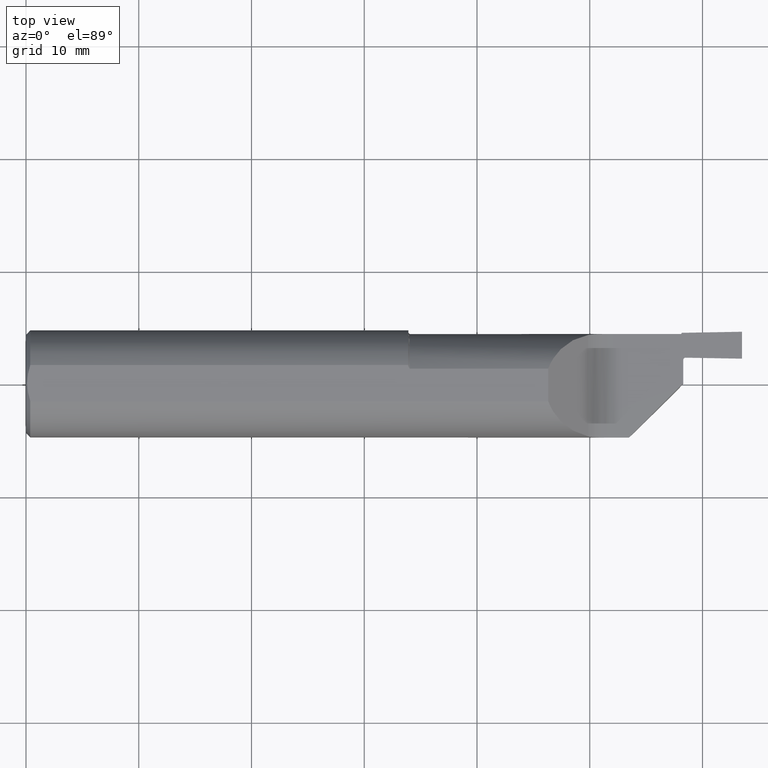
[diagram: clean part render]
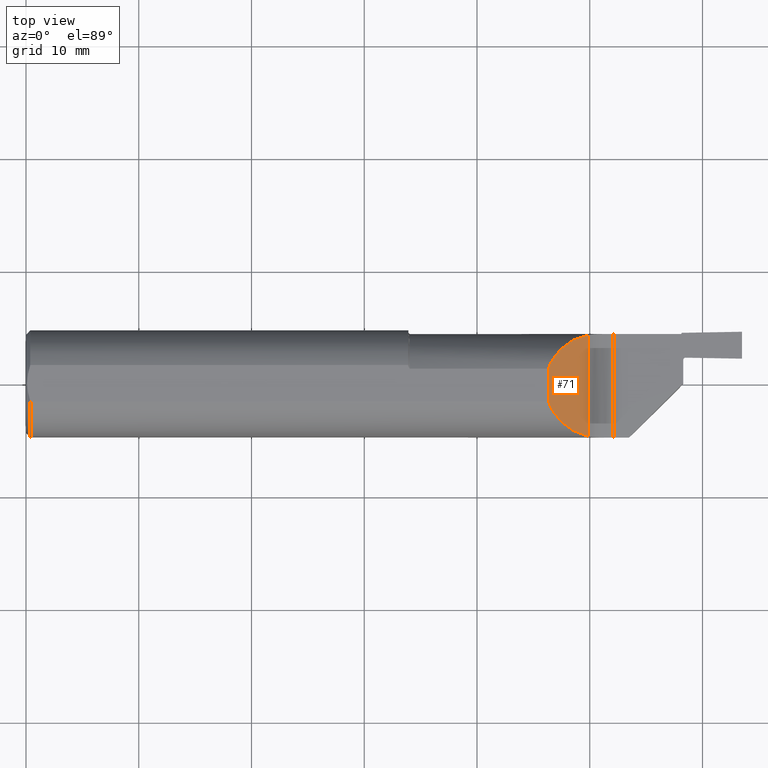
[diagram: same view with one face highlighted and labeled with its STEP entity id]
A machine part, top view. The second image highlights one B-rep face of the part: STEP entity #71.
In plain terms, the highlighted planar face has unit normal (0.7071, -0, 0.7071).
Its self-contained STEP definition (entity closure, byte-faithful):
#3 = DIRECTION ( 'NONE',  ( 0.7071067811865492381, 0.000000000000000000, -0.7071067811865459074 ) ) ;
#21 = CARTESIAN_POINT ( 'NONE',  ( 2.000000000000000000, 0.2873499999999999943, 6.488138984952624897E-16 ) ) ;
#47 = CARTESIAN_POINT ( 'NONE',  ( 1.897454588124415586, 0.1576130183548816455, 0.1025454118755840249 ) ) ;
#71 = ADVANCED_FACE ( 'NONE', ( #603 ), #87, .T. ) ;
#77 = CARTESIAN_POINT ( 'NONE',  ( 1.846378452100291501, -0.1266201564974553662, 0.1536215478997087214 ) ) ;
#87 = PLANE ( 'NONE',  #107 ) ;
#88 = VERTEX_POINT ( 'NONE', #536 ) ;
#102 = CARTESIAN_POINT ( 'NONE',  ( 1.846487386027261035, 0.1137732605392144658, 0.1535126139727385763 ) ) ;
#107 = AXIS2_PLACEMENT_3D ( 'NONE', #21, #277, #3 ) ;
#133 = DIRECTION ( 'NONE',  ( 0.000000000000000000, 1.000000000000000000, 0.000000000000000000 ) ) ;
#154 = ORIENTED_EDGE ( 'NONE', *, *, #327, .F. ) ;
#199 = VERTEX_POINT ( 'NONE', #857 ) ;
#202 = CARTESIAN_POINT ( 'NONE',  ( 1.963388347648318932, -0.1837378823544007778, 0.03661165235168151871 ) ) ;
#203 = ORIENTED_EDGE ( 'NONE', *, *, #256, .F. ) ;
#217 = CARTESIAN_POINT ( 'NONE',  ( 1.823649999999999771, 0.05054325299224043250, 0.1763499999999999790 ) ) ;
#256 = EDGE_CURVE ( 'NONE', #88, #687, #586, .T. ) ;
#259 = CARTESIAN_POINT ( 'NONE',  ( 1.823649999999999771, -0.06325108694718213631, 0.1763499999999999790 ) ) ;
#277 = DIRECTION ( 'NONE',  ( 0.7071067811865459074, -0.000000000000000000, 0.7071067811865492381 ) ) ;
#289 = ORIENTED_EDGE ( 'NONE', *, *, #334, .T. ) ;
#303 = ORIENTED_EDGE ( 'NONE', *, *, #862, .T. ) ;
#310 =( BOUNDED_CURVE ( )  B_SPLINE_CURVE ( 3, ( #445, #47, #102, #842 ),
 .UNSPECIFIED., .F., .F. ) 
 B_SPLINE_CURVE_WITH_KNOTS ( ( 4, 4 ),
 ( 4.908913714375442439, 5.936585895212762587 ),
 .UNSPECIFIED. ) 
 CURVE ( )  GEOMETRIC_REPRESENTATION_ITEM ( )  RATIONAL_B_SPLINE_CURVE ( ( 1.000000000000000000, 0.9139102658081098562, 0.9139102658081098562, 1.000000000000000000 ) ) 
 REPRESENTATION_ITEM ( '' )  );
#327 = EDGE_CURVE ( 'NONE', #594, #88, #757, .T. ) ;
#334 = EDGE_CURVE ( 'NONE', #594, #199, #535, .T. ) ;
#445 = CARTESIAN_POINT ( 'NONE',  ( 1.963388347648318710, 0.1707400671470789832, 0.03661165235168143545 ) ) ;
#466 = CARTESIAN_POINT ( 'NONE',  ( 1.823649999999999771, 0.06325108694718213631, 0.1763499999999999790 ) ) ;
#525 = DIRECTION ( 'NONE',  ( -0.000000000000000000, 1.000000000000000000, 0.000000000000000000 ) ) ;
#535 = LINE ( 'NONE', #799, #820 ) ;
#536 = CARTESIAN_POINT ( 'NONE',  ( 1.823649999999999771, -0.06325108694718213631, 0.1763499999999999790 ) ) ;
#586 = LINE ( 'NONE', #466, #752 ) ;
#594 = VERTEX_POINT ( 'NONE', #861 ) ;
#603 = FACE_OUTER_BOUND ( 'NONE', #742, .T. ) ;
#687 = VERTEX_POINT ( 'NONE', #217 ) ;
#734 = CARTESIAN_POINT ( 'NONE',  ( 1.897364539052141197, -0.1705819631923700119, 0.1026354609478592056 ) ) ;
#742 = EDGE_LOOP ( 'NONE', ( #289, #303, #203, #154 ) ) ;
#752 = VECTOR ( 'NONE', #525, 39.37007874015748143 ) ;
#757 =( BOUNDED_CURVE ( )  B_SPLINE_CURVE ( 3, ( #202, #734, #77, #259 ),
 .UNSPECIFIED., .F., .T. ) 
 B_SPLINE_CURVE_WITH_KNOTS ( ( 4, 4 ),
 ( 4.909073120026993919, 5.938809479923476076 ),
 .UNSPECIFIED. ) 
 CURVE ( )  GEOMETRIC_REPRESENTATION_ITEM ( )  RATIONAL_B_SPLINE_CURVE ( ( 1.000000000000000000, 0.9135717604705588801, 0.9135717604705588801, 1.000000000000000000 ) ) 
 REPRESENTATION_ITEM ( '' )  );
#799 = CARTESIAN_POINT ( 'NONE',  ( 1.963388347648318932, 0.2873499999999999943, 0.03661165235168144932 ) ) ;
#820 = VECTOR ( 'NONE', #133, 39.37007874015748143 ) ;
#842 = CARTESIAN_POINT ( 'NONE',  ( 1.823649999999999771, 0.05054325299224043250, 0.1763499999999999790 ) ) ;
#857 = CARTESIAN_POINT ( 'NONE',  ( 1.963388347648318710, 0.1707400671470789832, 0.03661165235168143545 ) ) ;
#861 = CARTESIAN_POINT ( 'NONE',  ( 1.963388347648318932, -0.1837378823544007778, 0.03661165235168151871 ) ) ;
#862 = EDGE_CURVE ( 'NONE', #199, #687, #310, .T. ) ;